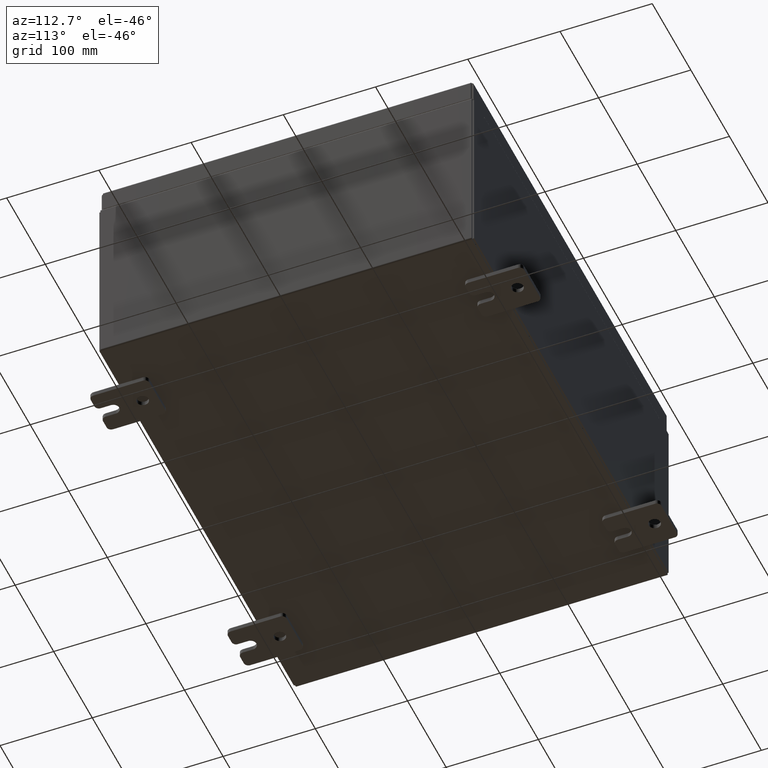
[diagram: clean part render]
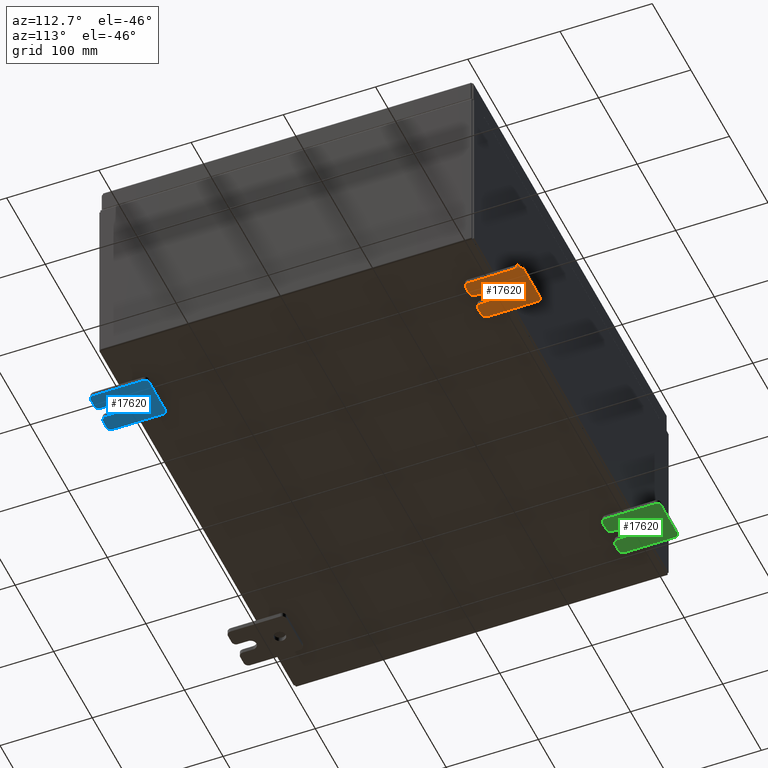
[diagram: same view with three faces highlighted in distinct colors, each labeled with its STEP entity id]
A machine part, auxiliary view with three faces highlighted in distinct colors.
Their STEP definitions:

[orange] entity #17620 — the highlighted planar face has unit normal (0, 0, 1).
#616 = CIRCLE ( 'NONE', #35258, 0.1900000000000011100 ) ;
#860 = EDGE_CURVE ( 'NONE', #48602, #14429, #616, .T. ) ;
#1122 = CARTESIAN_POINT ( 'NONE',  ( -0.1879999999999997800, 1.249999999999997300, 0.8099999999999935000 ) ) ;
#1169 = DIRECTION ( 'NONE',  ( 0.0000000000000000000, 0.0000000000000000000, -1.000000000000000000 ) ) ;
#1762 = EDGE_CURVE ( 'NONE', #41517, #42273, #29500, .T. ) ;
#2312 = CARTESIAN_POINT ( 'NONE',  ( -0.1880000000000001900, -0.6249999999999992200, 0.2500000000000005000 ) ) ;
#2475 = ORIENTED_EDGE ( 'NONE', *, *, #33131, .F. ) ;
#2684 = CARTESIAN_POINT ( 'NONE',  ( -0.1879999999999997800, 1.249999999999997600, 0.9999999999999951200 ) ) ;
#3099 = CARTESIAN_POINT ( 'NONE',  ( -0.1879999999999997800, 1.249999999999994200, -1.000000000000010400 ) ) ;
#3632 = ORIENTED_EDGE ( 'NONE', *, *, #860, .T. ) ;
#3665 = CARTESIAN_POINT ( 'NONE',  ( -0.1879999999999997800, -1.250000000000003100, 0.4400000000000020000 ) ) ;
#3670 = CARTESIAN_POINT ( 'NONE',  ( -0.1879999999999997800, -1.060000000000004100, -0.8100000000000050500 ) ) ;
#3838 = ORIENTED_EDGE ( 'NONE', *, *, #17734, .F. ) ;
#4656 = AXIS2_PLACEMENT_3D ( 'NONE', #57928, #28813, #62759 ) ;
#4715 = FACE_OUTER_BOUND ( 'NONE', #7604, .T. ) ;
#4796 = CARTESIAN_POINT ( 'NONE',  ( -0.1879999999999997800, -1.060000000000001600, 0.8099999999999978300 ) ) ;
#4928 = VECTOR ( 'NONE', #41715, 39.37007874015748100 ) ;
#5169 = LINE ( 'NONE', #33694, #13580 ) ;
#5639 = CIRCLE ( 'NONE', #62366, 0.1900000000000011400 ) ;
#6025 = CARTESIAN_POINT ( 'NONE',  ( -0.1879999999999997800, 1.059999999999993600, -0.8100000000000089400 ) ) ;
#7008 = CARTESIAN_POINT ( 'NONE',  ( -0.1880000000000004700, -1.060000000000003400, -0.2499999999999994400 ) ) ;
#7041 = AXIS2_PLACEMENT_3D ( 'NONE', #37142, #8017, #42045 ) ;
#7599 = EDGE_CURVE ( 'NONE', #39129, #60943, #5639, .T. ) ;
#7604 = EDGE_LOOP ( 'NONE', ( #48036, #41449, #3838, #34692, #40117, #59196, #2475, #25164, #37553, #3632, #24136, #41036, #38803, #60147 ) ) ;
#7988 = DIRECTION ( 'NONE',  ( 0.0000000000000000000, 1.639108796198553600E-015, 1.000000000000000000 ) ) ;
#8017 = DIRECTION ( 'NONE',  ( 1.000000000000000000, -0.0000000000000000000, -5.163192708025532000E-017 ) ) ;
#8482 = CARTESIAN_POINT ( 'NONE',  ( -0.1879999999999997800, -1.250000000000005600, -1.000000000000006200 ) ) ;
#8566 = DIRECTION ( 'NONE',  ( 0.0000000000000000000, 0.0000000000000000000, -1.000000000000000000 ) ) ;
#8916 = CARTESIAN_POINT ( 'NONE',  ( -0.1879999999999997800, 1.059999999999996500, 0.9999999999999953400 ) ) ;
#9121 = CIRCLE ( 'NONE', #26741, 0.1900000000000011100 ) ;
#9714 = DIRECTION ( 'NONE',  ( 0.0000000000000000000, 7.189073667537492800E-016, -1.000000000000000000 ) ) ;
#10335 = VECTOR ( 'NONE', #13169, 39.37007874015748100 ) ;
#10814 = EDGE_CURVE ( 'NONE', #49829, #18685, #38179, .T. ) ;
#10945 = DIRECTION ( 'NONE',  ( 0.0000000000000000000, 0.0000000000000000000, -1.000000000000000000 ) ) ;
#11264 = CARTESIAN_POINT ( 'NONE',  ( -0.1880000000000004700, -1.060000000000002100, 0.2500000000000005000 ) ) ;
#11715 = CARTESIAN_POINT ( 'NONE',  ( -0.1879999999999997800, -1.250000000000002200, 0.9999999999999992200 ) ) ;
#13112 = VECTOR ( 'NONE', #36701, 39.37007874015748100 ) ;
#13169 = DIRECTION ( 'NONE',  ( 0.0000000000000000000, 1.000000000000000000, -1.639108796198558100E-015 ) ) ;
#13580 = VECTOR ( 'NONE', #28821, 39.37007874015748100 ) ;
#14414 = EDGE_CURVE ( 'NONE', #48602, #16921, #36857, .T. ) ;
#14429 = VERTEX_POINT ( 'NONE', #7008 ) ;
#15918 = VECTOR ( 'NONE', #19956, 39.37007874015748100 ) ;
#16449 = EDGE_LOOP ( 'NONE', ( #41852, #51002 ) ) ;
#16921 = VERTEX_POINT ( 'NONE', #60424 ) ;
#17620 = ADVANCED_FACE ( 'NONE', ( #54907, #4715 ), #26305, .F. ) ;
#17734 = EDGE_CURVE ( 'NONE', #41517, #26911, #51906, .T. ) ;
#17918 = VERTEX_POINT ( 'NONE', #52459 ) ;
#18038 = EDGE_CURVE ( 'NONE', #54531, #26911, #45757, .T. ) ;
#18685 = VERTEX_POINT ( 'NONE', #34144 ) ;
#18795 = LINE ( 'NONE', #3099, #38529 ) ;
#19234 = DIRECTION ( 'NONE',  ( -1.000000000000000000, -0.0000000000000000000, 0.0000000000000000000 ) ) ;
#19344 = CARTESIAN_POINT ( 'NONE',  ( -0.1879999999999997800, -1.250000000000002400, 0.8099999999999980500 ) ) ;
#19432 = LINE ( 'NONE', #27270, #4928 ) ;
#19805 = CIRCLE ( 'NONE', #60220, 0.2499999999999999200 ) ;
#19956 = DIRECTION ( 'NONE',  ( 6.556435184794182400E-016, 1.000000000000000000, 0.0000000000000000000 ) ) ;
#21221 = DIRECTION ( 'NONE',  ( 1.000000000000000000, 0.0000000000000000000, -0.0000000000000000000 ) ) ;
#23961 = VECTOR ( 'NONE', #60346, 39.37007874015748100 ) ;
#24136 = ORIENTED_EDGE ( 'NONE', *, *, #55329, .F. ) ;
#25164 = ORIENTED_EDGE ( 'NONE', *, *, #26886, .T. ) ;
#26305 = PLANE ( 'NONE',  #45989 ) ;
#26741 = AXIS2_PLACEMENT_3D ( 'NONE', #3670, #37676, #8566 ) ;
#26886 = EDGE_CURVE ( 'NONE', #17918, #16921, #9121, .T. ) ;
#26911 = VERTEX_POINT ( 'NONE', #51948 ) ;
#27044 = CARTESIAN_POINT ( 'NONE',  ( -0.1879999999999997800, -1.060000000000003400, -0.4400000000000005000 ) ) ;
#27090 = EDGE_CURVE ( 'NONE', #39129, #48218, #28867, .T. ) ;
#27270 = CARTESIAN_POINT ( 'NONE',  ( -0.1879999999999997800, -1.250000000000002200, 0.9999999999999992200 ) ) ;
#28226 = DIRECTION ( 'NONE',  ( -1.000000000000000000, 6.523827964459549700E-016, 5.163192708025532000E-017 ) ) ;
#28813 = DIRECTION ( 'NONE',  ( 1.000000000000000000, -0.0000000000000000000, -5.163192708025532000E-017 ) ) ;
#28821 = DIRECTION ( 'NONE',  ( -6.556435184794182400E-016, -1.000000000000000000, -1.639108796198545600E-016 ) ) ;
#28867 = LINE ( 'NONE', #53946, #15918 ) ;
#29020 = VERTEX_POINT ( 'NONE', #58241 ) ;
#29389 = VERTEX_POINT ( 'NONE', #61295 ) ;
#29500 = CIRCLE ( 'NONE', #31658, 0.1900000000000011100 ) ;
#30323 = DIRECTION ( 'NONE',  ( -1.000000000000000000, -0.0000000000000000000, 0.0000000000000000000 ) ) ;
#31658 = AXIS2_PLACEMENT_3D ( 'NONE', #59427, #30323, #1169 ) ;
#31933 = DIRECTION ( 'NONE',  ( 0.0000000000000000000, 0.0000000000000000000, -1.000000000000000000 ) ) ;
#32345 = VERTEX_POINT ( 'NONE', #44735 ) ;
#33131 = EDGE_CURVE ( 'NONE', #17918, #29020, #62023, .T. ) ;
#33694 = CARTESIAN_POINT ( 'NONE',  ( -0.1880000000000001900, -0.6249999999999992200, -0.2499999999999993900 ) ) ;
#33809 = EDGE_CURVE ( 'NONE', #54531, #60943, #19432, .T. ) ;
#34144 = CARTESIAN_POINT ( 'NONE',  ( -0.1880000000000010000, 0.6249999999999992200, -0.2499999999999999200 ) ) ;
#34692 = ORIENTED_EDGE ( 'NONE', *, *, #1762, .T. ) ;
#35258 = AXIS2_PLACEMENT_3D ( 'NONE', #27044, #61001, #31933 ) ;
#36701 = DIRECTION ( 'NONE',  ( 0.0000000000000000000, -1.000000000000000000, 1.639108796198558100E-015 ) ) ;
#36857 = LINE ( 'NONE', #11715, #23961 ) ;
#37142 = CARTESIAN_POINT ( 'NONE',  ( -0.1880000000000010000, 0.6249999999999992200, -7.703811342100550500E-020 ) ) ;
#37474 = EDGE_CURVE ( 'NONE', #18685, #49829, #59462, .T. ) ;
#37553 = ORIENTED_EDGE ( 'NONE', *, *, #14414, .F. ) ;
#37676 = DIRECTION ( 'NONE',  ( -1.000000000000000000, -0.0000000000000000000, 0.0000000000000000000 ) ) ;
#37713 = CARTESIAN_POINT ( 'NONE',  ( -0.1879999999999997800, -1.250000000000004700, -0.4400000000000002200 ) ) ;
#38179 = CIRCLE ( 'NONE', #7041, 0.2499999999999999200 ) ;
#38529 = VECTOR ( 'NONE', #7988, 39.37007874015748100 ) ;
#38803 = ORIENTED_EDGE ( 'NONE', *, *, #27090, .F. ) ;
#38827 = DIRECTION ( 'NONE',  ( -1.000000000000000000, -0.0000000000000000000, 0.0000000000000000000 ) ) ;
#39129 = VERTEX_POINT ( 'NONE', #11264 ) ;
#39991 = EDGE_CURVE ( 'NONE', #48218, #29389, #19805, .T. ) ;
#40047 = DIRECTION ( 'NONE',  ( -1.000000000000000000, -0.0000000000000000000, 0.0000000000000000000 ) ) ;
#40117 = ORIENTED_EDGE ( 'NONE', *, *, #53870, .F. ) ;
#41036 = ORIENTED_EDGE ( 'NONE', *, *, #39991, .F. ) ;
#41449 = ORIENTED_EDGE ( 'NONE', *, *, #18038, .T. ) ;
#41517 = VERTEX_POINT ( 'NONE', #8916 ) ;
#41551 = AXIS2_PLACEMENT_3D ( 'NONE', #4796, #38827, #9714 ) ;
#41715 = DIRECTION ( 'NONE',  ( 0.0000000000000000000, -1.639108796198553600E-015, -1.000000000000000000 ) ) ;
#41852 = ORIENTED_EDGE ( 'NONE', *, *, #37474, .T. ) ;
#42045 = DIRECTION ( 'NONE',  ( 0.0000000000000000000, 0.0000000000000000000, -1.000000000000000000 ) ) ;
#42237 = EDGE_CURVE ( 'NONE', #32345, #29020, #61898, .T. ) ;
#42273 = VERTEX_POINT ( 'NONE', #1122 ) ;
#44735 = CARTESIAN_POINT ( 'NONE',  ( -0.1879999999999997800, 1.249999999999994700, -0.8100000000000092700 ) ) ;
#45757 = CIRCLE ( 'NONE', #41551, 0.1900000000000011100 ) ;
#45989 = AXIS2_PLACEMENT_3D ( 'NONE', #50527, #21221, #60273 ) ;
#48036 = ORIENTED_EDGE ( 'NONE', *, *, #33809, .F. ) ;
#48218 = VERTEX_POINT ( 'NONE', #2312 ) ;
#48324 = CARTESIAN_POINT ( 'NONE',  ( -0.1879999999999997800, -1.060000000000002100, 0.4400000000000016700 ) ) ;
#48602 = VERTEX_POINT ( 'NONE', #37713 ) ;
#49702 = AXIS2_PLACEMENT_3D ( 'NONE', #6025, #40047, #10945 ) ;
#49829 = VERTEX_POINT ( 'NONE', #55214 ) ;
#50527 = CARTESIAN_POINT ( 'NONE',  ( -0.1879999999999997800, 0.0000000000000000000, 0.0000000000000000000 ) ) ;
#51002 = ORIENTED_EDGE ( 'NONE', *, *, #10814, .T. ) ;
#51906 = LINE ( 'NONE', #2684, #13112 ) ;
#51948 = CARTESIAN_POINT ( 'NONE',  ( -0.1879999999999997800, -1.060000000000001200, 0.9999999999999988900 ) ) ;
#52459 = CARTESIAN_POINT ( 'NONE',  ( -0.1879999999999997800, -1.060000000000004500, -1.000000000000006400 ) ) ;
#53219 = DIRECTION ( 'NONE',  ( 0.0000000000000000000, 0.0000000000000000000, -1.000000000000000000 ) ) ;
#53870 = EDGE_CURVE ( 'NONE', #32345, #42273, #18795, .T. ) ;
#53946 = CARTESIAN_POINT ( 'NONE',  ( -0.1880000000000005800, -1.250000000000003800, 0.2500000000000005000 ) ) ;
#54531 = VERTEX_POINT ( 'NONE', #19344 ) ;
#54907 = FACE_BOUND ( 'NONE', #16449, .T. ) ;
#55214 = CARTESIAN_POINT ( 'NONE',  ( -0.1880000000000010000, 0.6249999999999992200, 0.2499999999999999200 ) ) ;
#55329 = EDGE_CURVE ( 'NONE', #29389, #14429, #5169, .T. ) ;
#57320 = CARTESIAN_POINT ( 'NONE',  ( -0.1880000000000001900, -0.6249999999999992200, 6.829619984160658000E-017 ) ) ;
#57928 = CARTESIAN_POINT ( 'NONE',  ( -0.1880000000000010000, 0.6249999999999992200, -7.703811342100550500E-020 ) ) ;
#58241 = CARTESIAN_POINT ( 'NONE',  ( -0.1879999999999997800, 1.059999999999993400, -1.000000000000010000 ) ) ;
#59196 = ORIENTED_EDGE ( 'NONE', *, *, #42237, .T. ) ;
#59427 = CARTESIAN_POINT ( 'NONE',  ( -0.1879999999999997800, 1.059999999999996300, 0.8099999999999938400 ) ) ;
#59462 = CIRCLE ( 'NONE', #4656, 0.2499999999999999200 ) ;
#60147 = ORIENTED_EDGE ( 'NONE', *, *, #7599, .T. ) ;
#60220 = AXIS2_PLACEMENT_3D ( 'NONE', #57320, #28226, #62176 ) ;
#60273 = DIRECTION ( 'NONE',  ( -0.0000000000000000000, 0.0000000000000000000, -1.000000000000000000 ) ) ;
#60346 = DIRECTION ( 'NONE',  ( 0.0000000000000000000, -1.639108796198553600E-015, -1.000000000000000000 ) ) ;
#60424 = CARTESIAN_POINT ( 'NONE',  ( -0.1879999999999997800, -1.250000000000005300, -0.8100000000000047200 ) ) ;
#60943 = VERTEX_POINT ( 'NONE', #3665 ) ;
#61001 = DIRECTION ( 'NONE',  ( -1.000000000000000000, -0.0000000000000000000, 0.0000000000000000000 ) ) ;
#61295 = CARTESIAN_POINT ( 'NONE',  ( -0.1880000000000001900, -0.6249999999999992200, -0.2499999999999998600 ) ) ;
#61898 = CIRCLE ( 'NONE', #49702, 0.1900000000000011100 ) ;
#62023 = LINE ( 'NONE', #8482, #10335 ) ;
#62176 = DIRECTION ( 'NONE',  ( -6.829619984160660000E-016, -1.000000000000000000, 0.0000000000000000000 ) ) ;
#62366 = AXIS2_PLACEMENT_3D ( 'NONE', #48324, #19234, #53219 ) ;
#62759 = DIRECTION ( 'NONE',  ( 0.0000000000000000000, 0.0000000000000000000, -1.000000000000000000 ) ) ;

[blue] entity #17620 — the highlighted planar face has unit normal (0, 0, 1).
#616 = CIRCLE ( 'NONE', #35258, 0.1900000000000011100 ) ;
#860 = EDGE_CURVE ( 'NONE', #48602, #14429, #616, .T. ) ;
#1122 = CARTESIAN_POINT ( 'NONE',  ( -0.1879999999999997800, 1.249999999999997300, 0.8099999999999935000 ) ) ;
#1169 = DIRECTION ( 'NONE',  ( 0.0000000000000000000, 0.0000000000000000000, -1.000000000000000000 ) ) ;
#1762 = EDGE_CURVE ( 'NONE', #41517, #42273, #29500, .T. ) ;
#2312 = CARTESIAN_POINT ( 'NONE',  ( -0.1880000000000001900, -0.6249999999999992200, 0.2500000000000005000 ) ) ;
#2475 = ORIENTED_EDGE ( 'NONE', *, *, #33131, .F. ) ;
#2684 = CARTESIAN_POINT ( 'NONE',  ( -0.1879999999999997800, 1.249999999999997600, 0.9999999999999951200 ) ) ;
#3099 = CARTESIAN_POINT ( 'NONE',  ( -0.1879999999999997800, 1.249999999999994200, -1.000000000000010400 ) ) ;
#3632 = ORIENTED_EDGE ( 'NONE', *, *, #860, .T. ) ;
#3665 = CARTESIAN_POINT ( 'NONE',  ( -0.1879999999999997800, -1.250000000000003100, 0.4400000000000020000 ) ) ;
#3670 = CARTESIAN_POINT ( 'NONE',  ( -0.1879999999999997800, -1.060000000000004100, -0.8100000000000050500 ) ) ;
#3838 = ORIENTED_EDGE ( 'NONE', *, *, #17734, .F. ) ;
#4656 = AXIS2_PLACEMENT_3D ( 'NONE', #57928, #28813, #62759 ) ;
#4715 = FACE_OUTER_BOUND ( 'NONE', #7604, .T. ) ;
#4796 = CARTESIAN_POINT ( 'NONE',  ( -0.1879999999999997800, -1.060000000000001600, 0.8099999999999978300 ) ) ;
#4928 = VECTOR ( 'NONE', #41715, 39.37007874015748100 ) ;
#5169 = LINE ( 'NONE', #33694, #13580 ) ;
#5639 = CIRCLE ( 'NONE', #62366, 0.1900000000000011400 ) ;
#6025 = CARTESIAN_POINT ( 'NONE',  ( -0.1879999999999997800, 1.059999999999993600, -0.8100000000000089400 ) ) ;
#7008 = CARTESIAN_POINT ( 'NONE',  ( -0.1880000000000004700, -1.060000000000003400, -0.2499999999999994400 ) ) ;
#7041 = AXIS2_PLACEMENT_3D ( 'NONE', #37142, #8017, #42045 ) ;
#7599 = EDGE_CURVE ( 'NONE', #39129, #60943, #5639, .T. ) ;
#7604 = EDGE_LOOP ( 'NONE', ( #48036, #41449, #3838, #34692, #40117, #59196, #2475, #25164, #37553, #3632, #24136, #41036, #38803, #60147 ) ) ;
#7988 = DIRECTION ( 'NONE',  ( 0.0000000000000000000, 1.639108796198553600E-015, 1.000000000000000000 ) ) ;
#8017 = DIRECTION ( 'NONE',  ( 1.000000000000000000, -0.0000000000000000000, -5.163192708025532000E-017 ) ) ;
#8482 = CARTESIAN_POINT ( 'NONE',  ( -0.1879999999999997800, -1.250000000000005600, -1.000000000000006200 ) ) ;
#8566 = DIRECTION ( 'NONE',  ( 0.0000000000000000000, 0.0000000000000000000, -1.000000000000000000 ) ) ;
#8916 = CARTESIAN_POINT ( 'NONE',  ( -0.1879999999999997800, 1.059999999999996500, 0.9999999999999953400 ) ) ;
#9121 = CIRCLE ( 'NONE', #26741, 0.1900000000000011100 ) ;
#9714 = DIRECTION ( 'NONE',  ( 0.0000000000000000000, 7.189073667537492800E-016, -1.000000000000000000 ) ) ;
#10335 = VECTOR ( 'NONE', #13169, 39.37007874015748100 ) ;
#10814 = EDGE_CURVE ( 'NONE', #49829, #18685, #38179, .T. ) ;
#10945 = DIRECTION ( 'NONE',  ( 0.0000000000000000000, 0.0000000000000000000, -1.000000000000000000 ) ) ;
#11264 = CARTESIAN_POINT ( 'NONE',  ( -0.1880000000000004700, -1.060000000000002100, 0.2500000000000005000 ) ) ;
#11715 = CARTESIAN_POINT ( 'NONE',  ( -0.1879999999999997800, -1.250000000000002200, 0.9999999999999992200 ) ) ;
#13112 = VECTOR ( 'NONE', #36701, 39.37007874015748100 ) ;
#13169 = DIRECTION ( 'NONE',  ( 0.0000000000000000000, 1.000000000000000000, -1.639108796198558100E-015 ) ) ;
#13580 = VECTOR ( 'NONE', #28821, 39.37007874015748100 ) ;
#14414 = EDGE_CURVE ( 'NONE', #48602, #16921, #36857, .T. ) ;
#14429 = VERTEX_POINT ( 'NONE', #7008 ) ;
#15918 = VECTOR ( 'NONE', #19956, 39.37007874015748100 ) ;
#16449 = EDGE_LOOP ( 'NONE', ( #41852, #51002 ) ) ;
#16921 = VERTEX_POINT ( 'NONE', #60424 ) ;
#17620 = ADVANCED_FACE ( 'NONE', ( #54907, #4715 ), #26305, .F. ) ;
#17734 = EDGE_CURVE ( 'NONE', #41517, #26911, #51906, .T. ) ;
#17918 = VERTEX_POINT ( 'NONE', #52459 ) ;
#18038 = EDGE_CURVE ( 'NONE', #54531, #26911, #45757, .T. ) ;
#18685 = VERTEX_POINT ( 'NONE', #34144 ) ;
#18795 = LINE ( 'NONE', #3099, #38529 ) ;
#19234 = DIRECTION ( 'NONE',  ( -1.000000000000000000, -0.0000000000000000000, 0.0000000000000000000 ) ) ;
#19344 = CARTESIAN_POINT ( 'NONE',  ( -0.1879999999999997800, -1.250000000000002400, 0.8099999999999980500 ) ) ;
#19432 = LINE ( 'NONE', #27270, #4928 ) ;
#19805 = CIRCLE ( 'NONE', #60220, 0.2499999999999999200 ) ;
#19956 = DIRECTION ( 'NONE',  ( 6.556435184794182400E-016, 1.000000000000000000, 0.0000000000000000000 ) ) ;
#21221 = DIRECTION ( 'NONE',  ( 1.000000000000000000, 0.0000000000000000000, -0.0000000000000000000 ) ) ;
#23961 = VECTOR ( 'NONE', #60346, 39.37007874015748100 ) ;
#24136 = ORIENTED_EDGE ( 'NONE', *, *, #55329, .F. ) ;
#25164 = ORIENTED_EDGE ( 'NONE', *, *, #26886, .T. ) ;
#26305 = PLANE ( 'NONE',  #45989 ) ;
#26741 = AXIS2_PLACEMENT_3D ( 'NONE', #3670, #37676, #8566 ) ;
#26886 = EDGE_CURVE ( 'NONE', #17918, #16921, #9121, .T. ) ;
#26911 = VERTEX_POINT ( 'NONE', #51948 ) ;
#27044 = CARTESIAN_POINT ( 'NONE',  ( -0.1879999999999997800, -1.060000000000003400, -0.4400000000000005000 ) ) ;
#27090 = EDGE_CURVE ( 'NONE', #39129, #48218, #28867, .T. ) ;
#27270 = CARTESIAN_POINT ( 'NONE',  ( -0.1879999999999997800, -1.250000000000002200, 0.9999999999999992200 ) ) ;
#28226 = DIRECTION ( 'NONE',  ( -1.000000000000000000, 6.523827964459549700E-016, 5.163192708025532000E-017 ) ) ;
#28813 = DIRECTION ( 'NONE',  ( 1.000000000000000000, -0.0000000000000000000, -5.163192708025532000E-017 ) ) ;
#28821 = DIRECTION ( 'NONE',  ( -6.556435184794182400E-016, -1.000000000000000000, -1.639108796198545600E-016 ) ) ;
#28867 = LINE ( 'NONE', #53946, #15918 ) ;
#29020 = VERTEX_POINT ( 'NONE', #58241 ) ;
#29389 = VERTEX_POINT ( 'NONE', #61295 ) ;
#29500 = CIRCLE ( 'NONE', #31658, 0.1900000000000011100 ) ;
#30323 = DIRECTION ( 'NONE',  ( -1.000000000000000000, -0.0000000000000000000, 0.0000000000000000000 ) ) ;
#31658 = AXIS2_PLACEMENT_3D ( 'NONE', #59427, #30323, #1169 ) ;
#31933 = DIRECTION ( 'NONE',  ( 0.0000000000000000000, 0.0000000000000000000, -1.000000000000000000 ) ) ;
#32345 = VERTEX_POINT ( 'NONE', #44735 ) ;
#33131 = EDGE_CURVE ( 'NONE', #17918, #29020, #62023, .T. ) ;
#33694 = CARTESIAN_POINT ( 'NONE',  ( -0.1880000000000001900, -0.6249999999999992200, -0.2499999999999993900 ) ) ;
#33809 = EDGE_CURVE ( 'NONE', #54531, #60943, #19432, .T. ) ;
#34144 = CARTESIAN_POINT ( 'NONE',  ( -0.1880000000000010000, 0.6249999999999992200, -0.2499999999999999200 ) ) ;
#34692 = ORIENTED_EDGE ( 'NONE', *, *, #1762, .T. ) ;
#35258 = AXIS2_PLACEMENT_3D ( 'NONE', #27044, #61001, #31933 ) ;
#36701 = DIRECTION ( 'NONE',  ( 0.0000000000000000000, -1.000000000000000000, 1.639108796198558100E-015 ) ) ;
#36857 = LINE ( 'NONE', #11715, #23961 ) ;
#37142 = CARTESIAN_POINT ( 'NONE',  ( -0.1880000000000010000, 0.6249999999999992200, -7.703811342100550500E-020 ) ) ;
#37474 = EDGE_CURVE ( 'NONE', #18685, #49829, #59462, .T. ) ;
#37553 = ORIENTED_EDGE ( 'NONE', *, *, #14414, .F. ) ;
#37676 = DIRECTION ( 'NONE',  ( -1.000000000000000000, -0.0000000000000000000, 0.0000000000000000000 ) ) ;
#37713 = CARTESIAN_POINT ( 'NONE',  ( -0.1879999999999997800, -1.250000000000004700, -0.4400000000000002200 ) ) ;
#38179 = CIRCLE ( 'NONE', #7041, 0.2499999999999999200 ) ;
#38529 = VECTOR ( 'NONE', #7988, 39.37007874015748100 ) ;
#38803 = ORIENTED_EDGE ( 'NONE', *, *, #27090, .F. ) ;
#38827 = DIRECTION ( 'NONE',  ( -1.000000000000000000, -0.0000000000000000000, 0.0000000000000000000 ) ) ;
#39129 = VERTEX_POINT ( 'NONE', #11264 ) ;
#39991 = EDGE_CURVE ( 'NONE', #48218, #29389, #19805, .T. ) ;
#40047 = DIRECTION ( 'NONE',  ( -1.000000000000000000, -0.0000000000000000000, 0.0000000000000000000 ) ) ;
#40117 = ORIENTED_EDGE ( 'NONE', *, *, #53870, .F. ) ;
#41036 = ORIENTED_EDGE ( 'NONE', *, *, #39991, .F. ) ;
#41449 = ORIENTED_EDGE ( 'NONE', *, *, #18038, .T. ) ;
#41517 = VERTEX_POINT ( 'NONE', #8916 ) ;
#41551 = AXIS2_PLACEMENT_3D ( 'NONE', #4796, #38827, #9714 ) ;
#41715 = DIRECTION ( 'NONE',  ( 0.0000000000000000000, -1.639108796198553600E-015, -1.000000000000000000 ) ) ;
#41852 = ORIENTED_EDGE ( 'NONE', *, *, #37474, .T. ) ;
#42045 = DIRECTION ( 'NONE',  ( 0.0000000000000000000, 0.0000000000000000000, -1.000000000000000000 ) ) ;
#42237 = EDGE_CURVE ( 'NONE', #32345, #29020, #61898, .T. ) ;
#42273 = VERTEX_POINT ( 'NONE', #1122 ) ;
#44735 = CARTESIAN_POINT ( 'NONE',  ( -0.1879999999999997800, 1.249999999999994700, -0.8100000000000092700 ) ) ;
#45757 = CIRCLE ( 'NONE', #41551, 0.1900000000000011100 ) ;
#45989 = AXIS2_PLACEMENT_3D ( 'NONE', #50527, #21221, #60273 ) ;
#48036 = ORIENTED_EDGE ( 'NONE', *, *, #33809, .F. ) ;
#48218 = VERTEX_POINT ( 'NONE', #2312 ) ;
#48324 = CARTESIAN_POINT ( 'NONE',  ( -0.1879999999999997800, -1.060000000000002100, 0.4400000000000016700 ) ) ;
#48602 = VERTEX_POINT ( 'NONE', #37713 ) ;
#49702 = AXIS2_PLACEMENT_3D ( 'NONE', #6025, #40047, #10945 ) ;
#49829 = VERTEX_POINT ( 'NONE', #55214 ) ;
#50527 = CARTESIAN_POINT ( 'NONE',  ( -0.1879999999999997800, 0.0000000000000000000, 0.0000000000000000000 ) ) ;
#51002 = ORIENTED_EDGE ( 'NONE', *, *, #10814, .T. ) ;
#51906 = LINE ( 'NONE', #2684, #13112 ) ;
#51948 = CARTESIAN_POINT ( 'NONE',  ( -0.1879999999999997800, -1.060000000000001200, 0.9999999999999988900 ) ) ;
#52459 = CARTESIAN_POINT ( 'NONE',  ( -0.1879999999999997800, -1.060000000000004500, -1.000000000000006400 ) ) ;
#53219 = DIRECTION ( 'NONE',  ( 0.0000000000000000000, 0.0000000000000000000, -1.000000000000000000 ) ) ;
#53870 = EDGE_CURVE ( 'NONE', #32345, #42273, #18795, .T. ) ;
#53946 = CARTESIAN_POINT ( 'NONE',  ( -0.1880000000000005800, -1.250000000000003800, 0.2500000000000005000 ) ) ;
#54531 = VERTEX_POINT ( 'NONE', #19344 ) ;
#54907 = FACE_BOUND ( 'NONE', #16449, .T. ) ;
#55214 = CARTESIAN_POINT ( 'NONE',  ( -0.1880000000000010000, 0.6249999999999992200, 0.2499999999999999200 ) ) ;
#55329 = EDGE_CURVE ( 'NONE', #29389, #14429, #5169, .T. ) ;
#57320 = CARTESIAN_POINT ( 'NONE',  ( -0.1880000000000001900, -0.6249999999999992200, 6.829619984160658000E-017 ) ) ;
#57928 = CARTESIAN_POINT ( 'NONE',  ( -0.1880000000000010000, 0.6249999999999992200, -7.703811342100550500E-020 ) ) ;
#58241 = CARTESIAN_POINT ( 'NONE',  ( -0.1879999999999997800, 1.059999999999993400, -1.000000000000010000 ) ) ;
#59196 = ORIENTED_EDGE ( 'NONE', *, *, #42237, .T. ) ;
#59427 = CARTESIAN_POINT ( 'NONE',  ( -0.1879999999999997800, 1.059999999999996300, 0.8099999999999938400 ) ) ;
#59462 = CIRCLE ( 'NONE', #4656, 0.2499999999999999200 ) ;
#60147 = ORIENTED_EDGE ( 'NONE', *, *, #7599, .T. ) ;
#60220 = AXIS2_PLACEMENT_3D ( 'NONE', #57320, #28226, #62176 ) ;
#60273 = DIRECTION ( 'NONE',  ( -0.0000000000000000000, 0.0000000000000000000, -1.000000000000000000 ) ) ;
#60346 = DIRECTION ( 'NONE',  ( 0.0000000000000000000, -1.639108796198553600E-015, -1.000000000000000000 ) ) ;
#60424 = CARTESIAN_POINT ( 'NONE',  ( -0.1879999999999997800, -1.250000000000005300, -0.8100000000000047200 ) ) ;
#60943 = VERTEX_POINT ( 'NONE', #3665 ) ;
#61001 = DIRECTION ( 'NONE',  ( -1.000000000000000000, -0.0000000000000000000, 0.0000000000000000000 ) ) ;
#61295 = CARTESIAN_POINT ( 'NONE',  ( -0.1880000000000001900, -0.6249999999999992200, -0.2499999999999998600 ) ) ;
#61898 = CIRCLE ( 'NONE', #49702, 0.1900000000000011100 ) ;
#62023 = LINE ( 'NONE', #8482, #10335 ) ;
#62176 = DIRECTION ( 'NONE',  ( -6.829619984160660000E-016, -1.000000000000000000, 0.0000000000000000000 ) ) ;
#62366 = AXIS2_PLACEMENT_3D ( 'NONE', #48324, #19234, #53219 ) ;
#62759 = DIRECTION ( 'NONE',  ( 0.0000000000000000000, 0.0000000000000000000, -1.000000000000000000 ) ) ;

[green] entity #17620 — the highlighted planar face has unit normal (0, 0, 1).
#616 = CIRCLE ( 'NONE', #35258, 0.1900000000000011100 ) ;
#860 = EDGE_CURVE ( 'NONE', #48602, #14429, #616, .T. ) ;
#1122 = CARTESIAN_POINT ( 'NONE',  ( -0.1879999999999997800, 1.249999999999997300, 0.8099999999999935000 ) ) ;
#1169 = DIRECTION ( 'NONE',  ( 0.0000000000000000000, 0.0000000000000000000, -1.000000000000000000 ) ) ;
#1762 = EDGE_CURVE ( 'NONE', #41517, #42273, #29500, .T. ) ;
#2312 = CARTESIAN_POINT ( 'NONE',  ( -0.1880000000000001900, -0.6249999999999992200, 0.2500000000000005000 ) ) ;
#2475 = ORIENTED_EDGE ( 'NONE', *, *, #33131, .F. ) ;
#2684 = CARTESIAN_POINT ( 'NONE',  ( -0.1879999999999997800, 1.249999999999997600, 0.9999999999999951200 ) ) ;
#3099 = CARTESIAN_POINT ( 'NONE',  ( -0.1879999999999997800, 1.249999999999994200, -1.000000000000010400 ) ) ;
#3632 = ORIENTED_EDGE ( 'NONE', *, *, #860, .T. ) ;
#3665 = CARTESIAN_POINT ( 'NONE',  ( -0.1879999999999997800, -1.250000000000003100, 0.4400000000000020000 ) ) ;
#3670 = CARTESIAN_POINT ( 'NONE',  ( -0.1879999999999997800, -1.060000000000004100, -0.8100000000000050500 ) ) ;
#3838 = ORIENTED_EDGE ( 'NONE', *, *, #17734, .F. ) ;
#4656 = AXIS2_PLACEMENT_3D ( 'NONE', #57928, #28813, #62759 ) ;
#4715 = FACE_OUTER_BOUND ( 'NONE', #7604, .T. ) ;
#4796 = CARTESIAN_POINT ( 'NONE',  ( -0.1879999999999997800, -1.060000000000001600, 0.8099999999999978300 ) ) ;
#4928 = VECTOR ( 'NONE', #41715, 39.37007874015748100 ) ;
#5169 = LINE ( 'NONE', #33694, #13580 ) ;
#5639 = CIRCLE ( 'NONE', #62366, 0.1900000000000011400 ) ;
#6025 = CARTESIAN_POINT ( 'NONE',  ( -0.1879999999999997800, 1.059999999999993600, -0.8100000000000089400 ) ) ;
#7008 = CARTESIAN_POINT ( 'NONE',  ( -0.1880000000000004700, -1.060000000000003400, -0.2499999999999994400 ) ) ;
#7041 = AXIS2_PLACEMENT_3D ( 'NONE', #37142, #8017, #42045 ) ;
#7599 = EDGE_CURVE ( 'NONE', #39129, #60943, #5639, .T. ) ;
#7604 = EDGE_LOOP ( 'NONE', ( #48036, #41449, #3838, #34692, #40117, #59196, #2475, #25164, #37553, #3632, #24136, #41036, #38803, #60147 ) ) ;
#7988 = DIRECTION ( 'NONE',  ( 0.0000000000000000000, 1.639108796198553600E-015, 1.000000000000000000 ) ) ;
#8017 = DIRECTION ( 'NONE',  ( 1.000000000000000000, -0.0000000000000000000, -5.163192708025532000E-017 ) ) ;
#8482 = CARTESIAN_POINT ( 'NONE',  ( -0.1879999999999997800, -1.250000000000005600, -1.000000000000006200 ) ) ;
#8566 = DIRECTION ( 'NONE',  ( 0.0000000000000000000, 0.0000000000000000000, -1.000000000000000000 ) ) ;
#8916 = CARTESIAN_POINT ( 'NONE',  ( -0.1879999999999997800, 1.059999999999996500, 0.9999999999999953400 ) ) ;
#9121 = CIRCLE ( 'NONE', #26741, 0.1900000000000011100 ) ;
#9714 = DIRECTION ( 'NONE',  ( 0.0000000000000000000, 7.189073667537492800E-016, -1.000000000000000000 ) ) ;
#10335 = VECTOR ( 'NONE', #13169, 39.37007874015748100 ) ;
#10814 = EDGE_CURVE ( 'NONE', #49829, #18685, #38179, .T. ) ;
#10945 = DIRECTION ( 'NONE',  ( 0.0000000000000000000, 0.0000000000000000000, -1.000000000000000000 ) ) ;
#11264 = CARTESIAN_POINT ( 'NONE',  ( -0.1880000000000004700, -1.060000000000002100, 0.2500000000000005000 ) ) ;
#11715 = CARTESIAN_POINT ( 'NONE',  ( -0.1879999999999997800, -1.250000000000002200, 0.9999999999999992200 ) ) ;
#13112 = VECTOR ( 'NONE', #36701, 39.37007874015748100 ) ;
#13169 = DIRECTION ( 'NONE',  ( 0.0000000000000000000, 1.000000000000000000, -1.639108796198558100E-015 ) ) ;
#13580 = VECTOR ( 'NONE', #28821, 39.37007874015748100 ) ;
#14414 = EDGE_CURVE ( 'NONE', #48602, #16921, #36857, .T. ) ;
#14429 = VERTEX_POINT ( 'NONE', #7008 ) ;
#15918 = VECTOR ( 'NONE', #19956, 39.37007874015748100 ) ;
#16449 = EDGE_LOOP ( 'NONE', ( #41852, #51002 ) ) ;
#16921 = VERTEX_POINT ( 'NONE', #60424 ) ;
#17620 = ADVANCED_FACE ( 'NONE', ( #54907, #4715 ), #26305, .F. ) ;
#17734 = EDGE_CURVE ( 'NONE', #41517, #26911, #51906, .T. ) ;
#17918 = VERTEX_POINT ( 'NONE', #52459 ) ;
#18038 = EDGE_CURVE ( 'NONE', #54531, #26911, #45757, .T. ) ;
#18685 = VERTEX_POINT ( 'NONE', #34144 ) ;
#18795 = LINE ( 'NONE', #3099, #38529 ) ;
#19234 = DIRECTION ( 'NONE',  ( -1.000000000000000000, -0.0000000000000000000, 0.0000000000000000000 ) ) ;
#19344 = CARTESIAN_POINT ( 'NONE',  ( -0.1879999999999997800, -1.250000000000002400, 0.8099999999999980500 ) ) ;
#19432 = LINE ( 'NONE', #27270, #4928 ) ;
#19805 = CIRCLE ( 'NONE', #60220, 0.2499999999999999200 ) ;
#19956 = DIRECTION ( 'NONE',  ( 6.556435184794182400E-016, 1.000000000000000000, 0.0000000000000000000 ) ) ;
#21221 = DIRECTION ( 'NONE',  ( 1.000000000000000000, 0.0000000000000000000, -0.0000000000000000000 ) ) ;
#23961 = VECTOR ( 'NONE', #60346, 39.37007874015748100 ) ;
#24136 = ORIENTED_EDGE ( 'NONE', *, *, #55329, .F. ) ;
#25164 = ORIENTED_EDGE ( 'NONE', *, *, #26886, .T. ) ;
#26305 = PLANE ( 'NONE',  #45989 ) ;
#26741 = AXIS2_PLACEMENT_3D ( 'NONE', #3670, #37676, #8566 ) ;
#26886 = EDGE_CURVE ( 'NONE', #17918, #16921, #9121, .T. ) ;
#26911 = VERTEX_POINT ( 'NONE', #51948 ) ;
#27044 = CARTESIAN_POINT ( 'NONE',  ( -0.1879999999999997800, -1.060000000000003400, -0.4400000000000005000 ) ) ;
#27090 = EDGE_CURVE ( 'NONE', #39129, #48218, #28867, .T. ) ;
#27270 = CARTESIAN_POINT ( 'NONE',  ( -0.1879999999999997800, -1.250000000000002200, 0.9999999999999992200 ) ) ;
#28226 = DIRECTION ( 'NONE',  ( -1.000000000000000000, 6.523827964459549700E-016, 5.163192708025532000E-017 ) ) ;
#28813 = DIRECTION ( 'NONE',  ( 1.000000000000000000, -0.0000000000000000000, -5.163192708025532000E-017 ) ) ;
#28821 = DIRECTION ( 'NONE',  ( -6.556435184794182400E-016, -1.000000000000000000, -1.639108796198545600E-016 ) ) ;
#28867 = LINE ( 'NONE', #53946, #15918 ) ;
#29020 = VERTEX_POINT ( 'NONE', #58241 ) ;
#29389 = VERTEX_POINT ( 'NONE', #61295 ) ;
#29500 = CIRCLE ( 'NONE', #31658, 0.1900000000000011100 ) ;
#30323 = DIRECTION ( 'NONE',  ( -1.000000000000000000, -0.0000000000000000000, 0.0000000000000000000 ) ) ;
#31658 = AXIS2_PLACEMENT_3D ( 'NONE', #59427, #30323, #1169 ) ;
#31933 = DIRECTION ( 'NONE',  ( 0.0000000000000000000, 0.0000000000000000000, -1.000000000000000000 ) ) ;
#32345 = VERTEX_POINT ( 'NONE', #44735 ) ;
#33131 = EDGE_CURVE ( 'NONE', #17918, #29020, #62023, .T. ) ;
#33694 = CARTESIAN_POINT ( 'NONE',  ( -0.1880000000000001900, -0.6249999999999992200, -0.2499999999999993900 ) ) ;
#33809 = EDGE_CURVE ( 'NONE', #54531, #60943, #19432, .T. ) ;
#34144 = CARTESIAN_POINT ( 'NONE',  ( -0.1880000000000010000, 0.6249999999999992200, -0.2499999999999999200 ) ) ;
#34692 = ORIENTED_EDGE ( 'NONE', *, *, #1762, .T. ) ;
#35258 = AXIS2_PLACEMENT_3D ( 'NONE', #27044, #61001, #31933 ) ;
#36701 = DIRECTION ( 'NONE',  ( 0.0000000000000000000, -1.000000000000000000, 1.639108796198558100E-015 ) ) ;
#36857 = LINE ( 'NONE', #11715, #23961 ) ;
#37142 = CARTESIAN_POINT ( 'NONE',  ( -0.1880000000000010000, 0.6249999999999992200, -7.703811342100550500E-020 ) ) ;
#37474 = EDGE_CURVE ( 'NONE', #18685, #49829, #59462, .T. ) ;
#37553 = ORIENTED_EDGE ( 'NONE', *, *, #14414, .F. ) ;
#37676 = DIRECTION ( 'NONE',  ( -1.000000000000000000, -0.0000000000000000000, 0.0000000000000000000 ) ) ;
#37713 = CARTESIAN_POINT ( 'NONE',  ( -0.1879999999999997800, -1.250000000000004700, -0.4400000000000002200 ) ) ;
#38179 = CIRCLE ( 'NONE', #7041, 0.2499999999999999200 ) ;
#38529 = VECTOR ( 'NONE', #7988, 39.37007874015748100 ) ;
#38803 = ORIENTED_EDGE ( 'NONE', *, *, #27090, .F. ) ;
#38827 = DIRECTION ( 'NONE',  ( -1.000000000000000000, -0.0000000000000000000, 0.0000000000000000000 ) ) ;
#39129 = VERTEX_POINT ( 'NONE', #11264 ) ;
#39991 = EDGE_CURVE ( 'NONE', #48218, #29389, #19805, .T. ) ;
#40047 = DIRECTION ( 'NONE',  ( -1.000000000000000000, -0.0000000000000000000, 0.0000000000000000000 ) ) ;
#40117 = ORIENTED_EDGE ( 'NONE', *, *, #53870, .F. ) ;
#41036 = ORIENTED_EDGE ( 'NONE', *, *, #39991, .F. ) ;
#41449 = ORIENTED_EDGE ( 'NONE', *, *, #18038, .T. ) ;
#41517 = VERTEX_POINT ( 'NONE', #8916 ) ;
#41551 = AXIS2_PLACEMENT_3D ( 'NONE', #4796, #38827, #9714 ) ;
#41715 = DIRECTION ( 'NONE',  ( 0.0000000000000000000, -1.639108796198553600E-015, -1.000000000000000000 ) ) ;
#41852 = ORIENTED_EDGE ( 'NONE', *, *, #37474, .T. ) ;
#42045 = DIRECTION ( 'NONE',  ( 0.0000000000000000000, 0.0000000000000000000, -1.000000000000000000 ) ) ;
#42237 = EDGE_CURVE ( 'NONE', #32345, #29020, #61898, .T. ) ;
#42273 = VERTEX_POINT ( 'NONE', #1122 ) ;
#44735 = CARTESIAN_POINT ( 'NONE',  ( -0.1879999999999997800, 1.249999999999994700, -0.8100000000000092700 ) ) ;
#45757 = CIRCLE ( 'NONE', #41551, 0.1900000000000011100 ) ;
#45989 = AXIS2_PLACEMENT_3D ( 'NONE', #50527, #21221, #60273 ) ;
#48036 = ORIENTED_EDGE ( 'NONE', *, *, #33809, .F. ) ;
#48218 = VERTEX_POINT ( 'NONE', #2312 ) ;
#48324 = CARTESIAN_POINT ( 'NONE',  ( -0.1879999999999997800, -1.060000000000002100, 0.4400000000000016700 ) ) ;
#48602 = VERTEX_POINT ( 'NONE', #37713 ) ;
#49702 = AXIS2_PLACEMENT_3D ( 'NONE', #6025, #40047, #10945 ) ;
#49829 = VERTEX_POINT ( 'NONE', #55214 ) ;
#50527 = CARTESIAN_POINT ( 'NONE',  ( -0.1879999999999997800, 0.0000000000000000000, 0.0000000000000000000 ) ) ;
#51002 = ORIENTED_EDGE ( 'NONE', *, *, #10814, .T. ) ;
#51906 = LINE ( 'NONE', #2684, #13112 ) ;
#51948 = CARTESIAN_POINT ( 'NONE',  ( -0.1879999999999997800, -1.060000000000001200, 0.9999999999999988900 ) ) ;
#52459 = CARTESIAN_POINT ( 'NONE',  ( -0.1879999999999997800, -1.060000000000004500, -1.000000000000006400 ) ) ;
#53219 = DIRECTION ( 'NONE',  ( 0.0000000000000000000, 0.0000000000000000000, -1.000000000000000000 ) ) ;
#53870 = EDGE_CURVE ( 'NONE', #32345, #42273, #18795, .T. ) ;
#53946 = CARTESIAN_POINT ( 'NONE',  ( -0.1880000000000005800, -1.250000000000003800, 0.2500000000000005000 ) ) ;
#54531 = VERTEX_POINT ( 'NONE', #19344 ) ;
#54907 = FACE_BOUND ( 'NONE', #16449, .T. ) ;
#55214 = CARTESIAN_POINT ( 'NONE',  ( -0.1880000000000010000, 0.6249999999999992200, 0.2499999999999999200 ) ) ;
#55329 = EDGE_CURVE ( 'NONE', #29389, #14429, #5169, .T. ) ;
#57320 = CARTESIAN_POINT ( 'NONE',  ( -0.1880000000000001900, -0.6249999999999992200, 6.829619984160658000E-017 ) ) ;
#57928 = CARTESIAN_POINT ( 'NONE',  ( -0.1880000000000010000, 0.6249999999999992200, -7.703811342100550500E-020 ) ) ;
#58241 = CARTESIAN_POINT ( 'NONE',  ( -0.1879999999999997800, 1.059999999999993400, -1.000000000000010000 ) ) ;
#59196 = ORIENTED_EDGE ( 'NONE', *, *, #42237, .T. ) ;
#59427 = CARTESIAN_POINT ( 'NONE',  ( -0.1879999999999997800, 1.059999999999996300, 0.8099999999999938400 ) ) ;
#59462 = CIRCLE ( 'NONE', #4656, 0.2499999999999999200 ) ;
#60147 = ORIENTED_EDGE ( 'NONE', *, *, #7599, .T. ) ;
#60220 = AXIS2_PLACEMENT_3D ( 'NONE', #57320, #28226, #62176 ) ;
#60273 = DIRECTION ( 'NONE',  ( -0.0000000000000000000, 0.0000000000000000000, -1.000000000000000000 ) ) ;
#60346 = DIRECTION ( 'NONE',  ( 0.0000000000000000000, -1.639108796198553600E-015, -1.000000000000000000 ) ) ;
#60424 = CARTESIAN_POINT ( 'NONE',  ( -0.1879999999999997800, -1.250000000000005300, -0.8100000000000047200 ) ) ;
#60943 = VERTEX_POINT ( 'NONE', #3665 ) ;
#61001 = DIRECTION ( 'NONE',  ( -1.000000000000000000, -0.0000000000000000000, 0.0000000000000000000 ) ) ;
#61295 = CARTESIAN_POINT ( 'NONE',  ( -0.1880000000000001900, -0.6249999999999992200, -0.2499999999999998600 ) ) ;
#61898 = CIRCLE ( 'NONE', #49702, 0.1900000000000011100 ) ;
#62023 = LINE ( 'NONE', #8482, #10335 ) ;
#62176 = DIRECTION ( 'NONE',  ( -6.829619984160660000E-016, -1.000000000000000000, 0.0000000000000000000 ) ) ;
#62366 = AXIS2_PLACEMENT_3D ( 'NONE', #48324, #19234, #53219 ) ;
#62759 = DIRECTION ( 'NONE',  ( 0.0000000000000000000, 0.0000000000000000000, -1.000000000000000000 ) ) ;